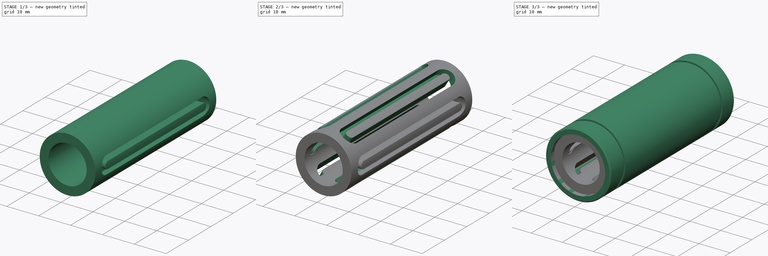
[diagram: build sequence overview — one tinted view per stage of 3, left to right]
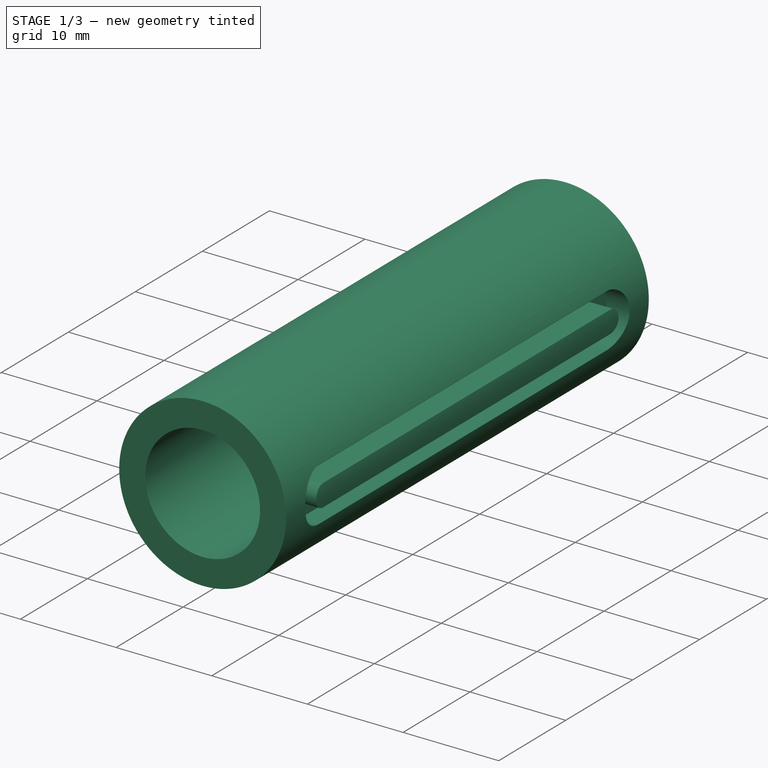
[diagram: stage 1 of 3 — iso view after this stage's code; geometry added in this stage tinted green]
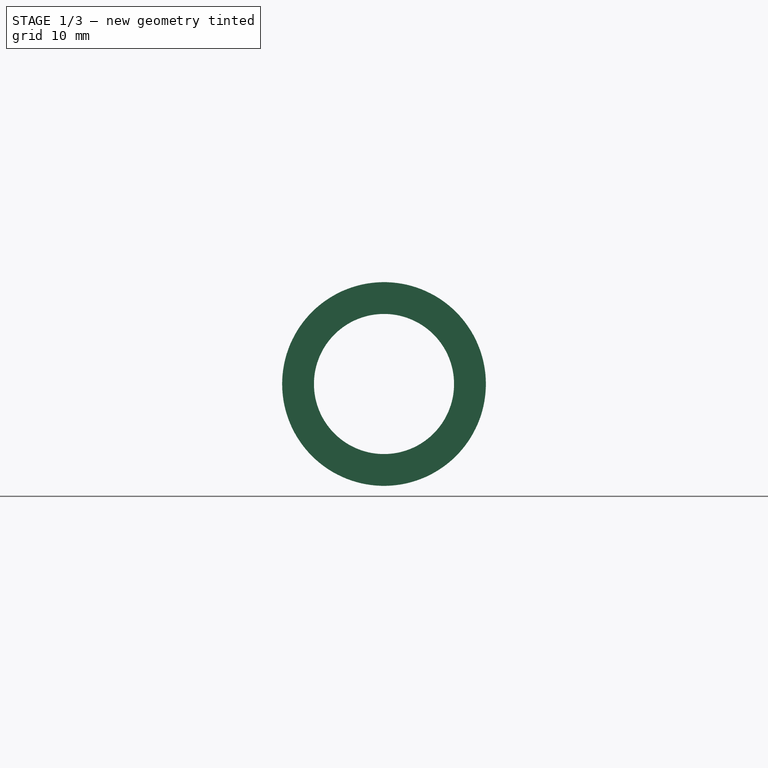
[diagram: stage 1 of 3 — front view after this stage's code; geometry added in this stage tinted green]
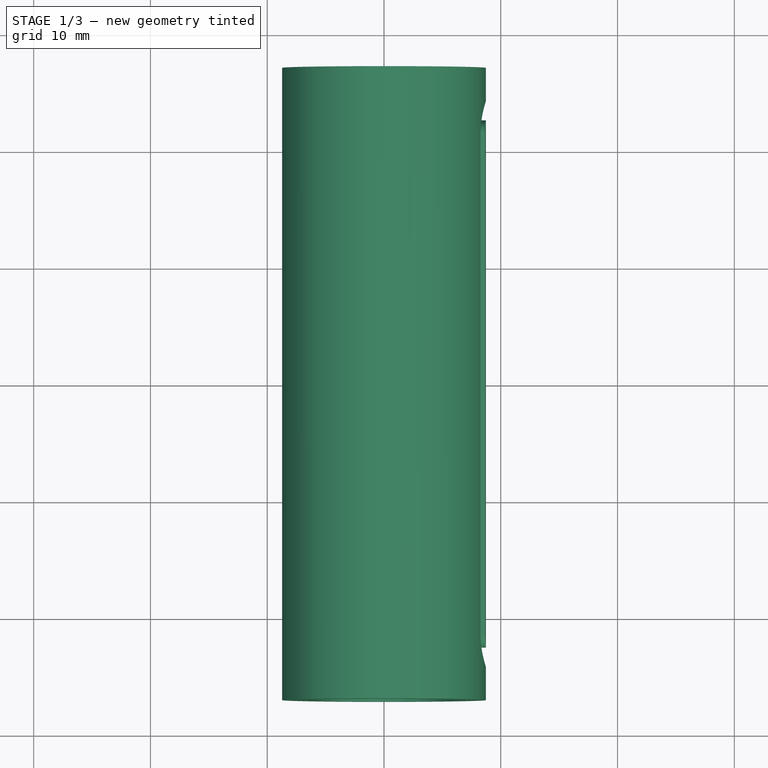
[diagram: stage 1 of 3 — top view after this stage's code; geometry added in this stage tinted green]
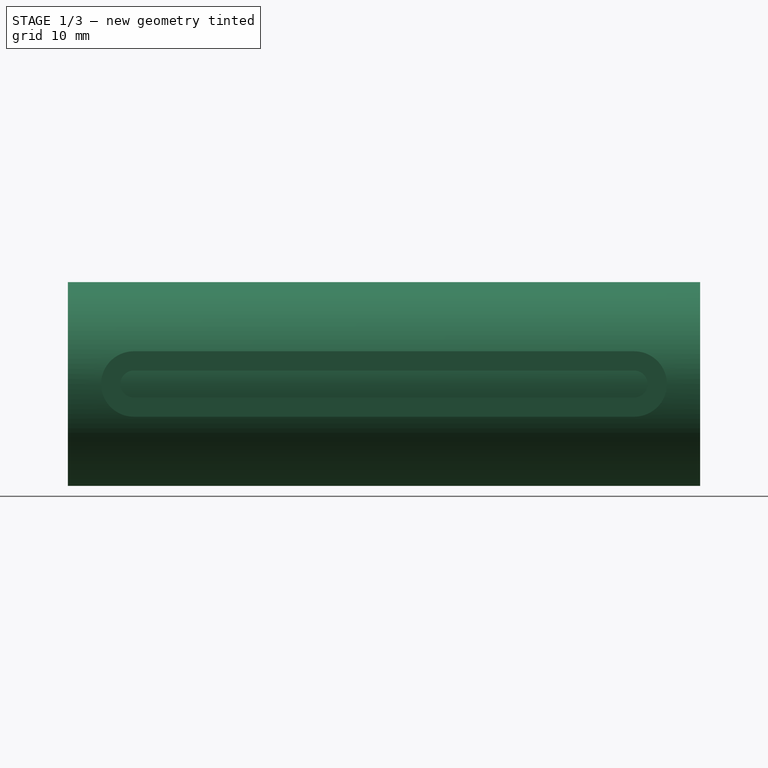
[diagram: stage 1 of 3 — right view after this stage's code; geometry added in this stage tinted green]
FCSTD DOCUMENT  (FreeCAD 0.21R33694 (Git))
Label: LMXXXUU
Comment: Parametric linear bearing model\n\nData from: 'https://www.dold-mechatronik.de/documents/Datasheets/Linear_Guidance/Datasheet_linear_bearing-without-housing.pdf\n\nThis model is licensed under CC-BY 4... (+65 chars)
License: Creative Commons Attribution
LicenseURL: http://creativecommons.org/licenses/by/4.0/
objects: Sketcher::SketchObject×4, PartDesign::Body×2, PartDesign::Pocket×2, PartDesign::Pad×1, PartDesign::Revolution×1, PartDesign::Chamfer×1, Spreadsheet::Sheet×1, PartDesign::PolarPattern×1, App::Part×1
note: 17 computed .brp shape members not serialized (recipe doc carries the construction recipe); baked Part::Feature solids carry a one-line shape summary decoded from their .brp

FEATURE [Sketcher::SketchObject] Sketch
  FullyConstrained = true
  MapMode = 5
  Placement = pos=(0,0,0) rot=(1,0,0;1.5708rad)
  Support = -> [XZ_Plane]
  expr: Constraints[2] = <<Spreadsheet>>.dr_dim
  expr: Constraints[3] = <<Spreadsheet>>.Daux_dim
  sketch-geometry (2):
    g0: Circle CenterX=0 CenterY=0 CenterZ=0 NormalX=0 NormalY=0 NormalZ=1 AngleXU=0 Radius=6
    g1: Circle CenterX=0 CenterY=0 CenterZ=0 NormalX=0 NormalY=0 NormalZ=1 AngleXU=0 Radius=8.722
  constraints (4):
    c: Coincident(g0,g-1)
    c: Coincident(g1,g0)
    c: Diameter(g0) = 12
    c: Diameter(g1) = 17.444
FEATURE [PartDesign::Pad] Pad
  Direction = (0,-1,-2e-16)
  Length = 54.15
  Length2 = 100
  Midplane = true
  Placement = pos=(0,0,0) rot=(1,0,0;1.5708rad)
  Profile = -> Sketch
  ReferenceAxis = -> Sketch [N_Axis]
  Type = 0
  expr: Length = 0.95 * Spreadsheet.L_dim
FEATURE [PartDesign::Body] Body001  label="Metal"
  Group = -> [Sketch001,Revolution,Chamfer]
  Origin = -> Origin002
  Tip = -> Chamfer
FEATURE [Spreadsheet::Sheet] Spreadsheet
  cells = A1='Multiple Linearr bearing without housing models in a single file. Only closed models.; A2='Data from:; B2='https://www.dold-mechatronik.de/documents/Datasheets/Linear_Guidance/Datasheet_linear_bearing-without-housing.pdf; A4='LME···UU; B4='Bearing according to the metric-European standard; F4='UU; G4='Dirt wipers on both sides; A5='LM···UU; B5='Metric-Japanese standard bearing; A6='LME···LUU; B6='Bearing according to the metric-European standard; A7='LM···LUU; B7='Metric-Japanese standard bearing; A10='Note 1: Daux variable means the diameter between the plastic retainer and the metal enclosure, there is no data in the pdf and did not find datasheet of retainers. Also same ball bearings size is assumed.; A11='Note 2: There are 52 models; A12='Model; B12='Ball rows; C12='dr; D12='D; E12='L; F12='B; G12='W; H12='D1; I12='aux; J12='Daux; A13==hiddenref(Part.Model.String); B13(ball_rows)==.B56; C13(dr_dim)==.C56; D13(D_dim)==.D56; E13(L_dim)==.E56; F13(B_dim)==.F56; G13(W_dim)==.G56; H13(D1_dim)==.H56; I13(aux_dim)==.I56; J13(Daux_dim)==.J56; A14='LME5UU; B14=4; C14=5; D14=12; E14=22; F14=14.5; G14=1.1; H14=11.5; I14==D14 * 0.0846666666666667; J14==D14 - 2 * I14; A15='LME8UU; B15=6; C15=8; D15=16; E15=25; F15=16.5; G15=1.1; H15=15.2; I15==D15 * 0.0846666666666667; J15==D15 - 2 * I15; A16='LME10UU; B16=6; C16=10; D16=19; E16=29; F16=22; G16=1.3; H16=18; I16==D16 * 0.0846666666666667; J16==D16 - 2 * I16; A17='LME12UU; B17=6; C17=12; D17=22; E17=32; F17=22.9; G17=1.3; H17=21; I17==D17 * 0.0846666666666667; J17==D17 - 2 * I17; A18='LME16UU; B18=6; C18=16; D18=26; E18=36; F18=24.9; G18=1.3; H18=24.9; I18==D18 * 0.0846666666666667; J18==D18 - 2 * I18; A19='LME20UU; B19=6; C19=20; D19=32; E19=45; F19=31.5; G19=1.6; H19=30.3; I19==D19 * 0.0846666666666667; J19==D19 - 2 * I19; A20='LME25UU; B20=6; C20=25; D20=40; E20=58; F20=44.1; G20=1.85; H20=37.5; I20==D20 * 0.0846666666666667; J20==D20 - 2 * I20; A21='LME30UU; B21=6; C21=30; D21=47; E21=68; F21=52.1; G21=1.85; H21=44.5; I21==D21 * 0.0846666666666667; J21==D21 - 2 * I21; A22='LME40UU; B22=6; C22=40; D22=62; E22=80; F22=60.6; G22=2.15; H22=59.5; I22==D22 * 0.0846666666666667; J22==D22 - 2 * I22; A23='LME50UU; B23=6; C23=50; D23=75; E23=100; F23=77.6; G23=2.65; H23=72.5; I23==D23 * 0.0846666666666667; J23==D23 - 2 * I23; A24='LME60UU; B24=6; C24=60; D24=90; E24=125; F24=101.7; G24=3.15; H24=86.5; I24==D24 * 0.0846666666666667; J24==D24 - 2 * I24; A25='LM5UU; B25=4; C25=5; D25=10; E25=15; F25=10.2; G25=1.1; H25=9.6; I25==D25 * 0.0846666666666667; J25==D25 - 2 * I25; A26='LM6UU; B26=4; C26=6; D26=12; E26=19; F26=13.5; G26=1.1; H26=11.5; I26==D26 * 0.0846666666666667; J26==D26 - 2 * I26; A27='LM8SUU; B27=6; C27=8; D27=15; E27=17; F27=11.5; G27=1.1; H27=14.3; I27==D27 * 0.0846666666666667; J27==D27 - 2 * I27; A28='LM8UU; B28=6; C28=8; D28=15; E28=24; F28=17.5; G28=1.1; H28=14.3; I28==D28 * 0.0846666666666667; J28==D28 - 2 * I28; A29='LM10UU; B29=6; C29=10; D29=19; E29=29; F29=22; G29=1.3; H29=18; I29==D29 * 0.0846666666666667; J29==D29 - 2 * I29; A30='LM12UU; B30=6; C30=12; D30=21; E30=30; +355 more cells
  expr: .cells.Bind.B13.J13 = tuple(.cells; <<B>> + str(hiddenref(Part.Model) + 14); <<J>> + str(hiddenref(Part.Model) + 14))
FEATURE [Sketcher::SketchObject] Sketch002
  AttachmentOffset = pos=(0,0,8.722) rot=(0,0,1;0rad)
  FullyConstrained = true
  MapMode = 5
  Placement = pos=(8.722,-1.9e-15,1.9e-15) rot=(0.57735,0.57735,0.57735;2.0944rad)
  Support = -> [YZ_Plane]
  expr: .AttachmentOffset.Base.z = <<Spreadsheet>>.Daux_dim / 2
  expr: Constraints[21] = 0.85 * <<Spreadsheet>>.L_dim - 5.6
  sketch-geometry (10):
    g0: ArcOfCircle CenterX=-21.425 CenterY=0 CenterZ=0 NormalX=0 NormalY=0 NormalZ=1 AngleXU=0 Radius=1.15 StartAngle=1.5708 EndAngle=4.71239
    g1: ArcOfCircle CenterX=21.425 CenterY=0 CenterZ=0 NormalX=0 NormalY=0 NormalZ=1 AngleXU=0 Radius=1.15 StartAngle=4.71239 EndAngle=7.85398
    g2: LineSegment StartX=-21.425 StartY=-1.15 StartZ=0 EndX=21.425 EndY=-1.15 EndZ=0
    g3: LineSegment StartX=21.425 StartY=1.15 StartZ=0 EndX=-21.425 EndY=1.15 EndZ=0
    g4: ArcOfCircle CenterX=-21.425 CenterY=0 CenterZ=0 NormalX=0 NormalY=0 NormalZ=1 AngleXU=0 Radius=2.8 StartAngle=1.5708 EndAngle=4.71239
    g5: ArcOfCircle CenterX=21.425 CenterY=0 CenterZ=0 NormalX=0 NormalY=0 NormalZ=1 AngleXU=0 Radius=2.8 StartAngle=4.71239 EndAngle=7.85398
    g6: LineSegment StartX=-21.425 StartY=-2.8 StartZ=0 EndX=21.425 EndY=-2.8 EndZ=0
    g7: LineSegment StartX=21.425 StartY=2.8 StartZ=0 EndX=-21.425 EndY=2.8 EndZ=0
    g8: GeomPoint X=-20.275 Y=0 Z=0
    g9: GeomPoint X=22.575 Y=0 Z=0
  constraints (24):
    c: Tangent(g0,g2) = -1.5708
    c: Tangent(g2,g1) = -1.5708
    c: Tangent(g1,g3) = -1.5708
    c: Tangent(g3,g0) = -1.5708
    c: Equal(g0,g1)
    c: PointOnObject(g0,g-1)
    c: Symmetric(g1,g0,g-1)
    c: Tangent(g4,g6) = -1.5708
    c: Tangent(g6,g5) = -1.5708
    c: Tangent(g5,g7) = -1.5708
    c: Tangent(g7,g4) = -1.5708
    c: Equal(g4,g5)
    c: PointOnObject(g4,g-1)
    c: Symmetric(g4,g5,g-1)
    c: Diameter(g1) = 2.3
    c: Diameter(g5) = 5.6
    c: PointOnObject(g8,g0)
    c: PointOnObject(g9,g1)
    c: PointOnObject(g8,g-1)
    c: PointOnObject(g9,g-1)
    c: Vertical(g1,g5)
    c: DistanceX(g7,g7) = 42.85
    c: DistanceY(g1) = 1.15
    c: DistanceY(g5) = 2.8
FEATURE [PartDesign::Pocket] Pocket
  BaseFeature = -> Pad
  Direction = (-1,2e-16,-3e-16)
  Length = 2.4498
  Length2 = 5
  Placement = pos=(0,0,0) rot=(1,0,0;1.5708rad)
  Profile = -> Sketch002
  ReferenceAxis = -> Sketch002 [N_Axis]
  Type = 0
  expr: Length = 0.9 * (<<Spreadsheet>>.Daux_dim / 2 - <<Spreadsheet>>.dr_dim / 2)
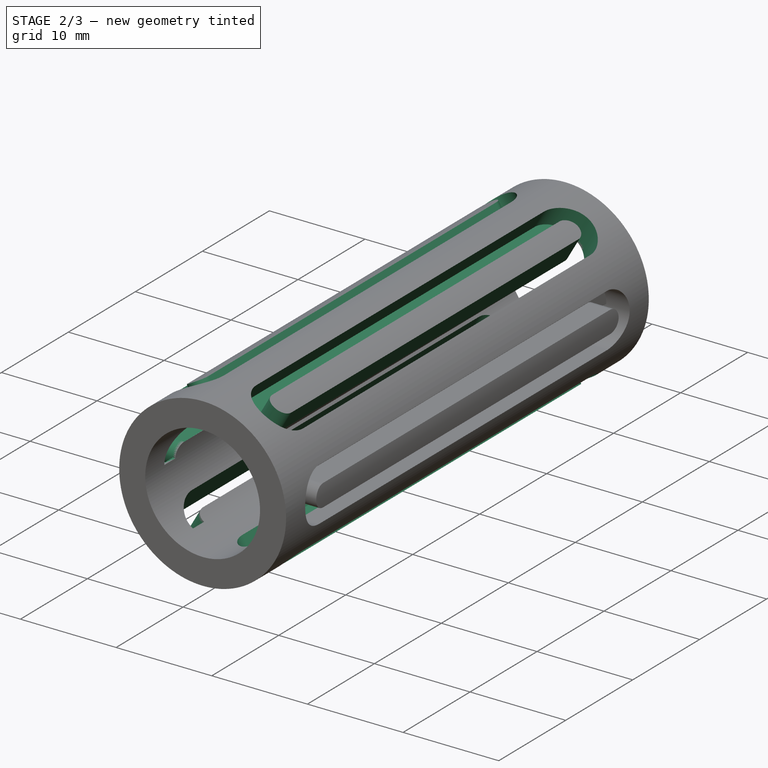
[diagram: stage 2 of 3 — iso view after this stage's code; geometry added in this stage tinted green]
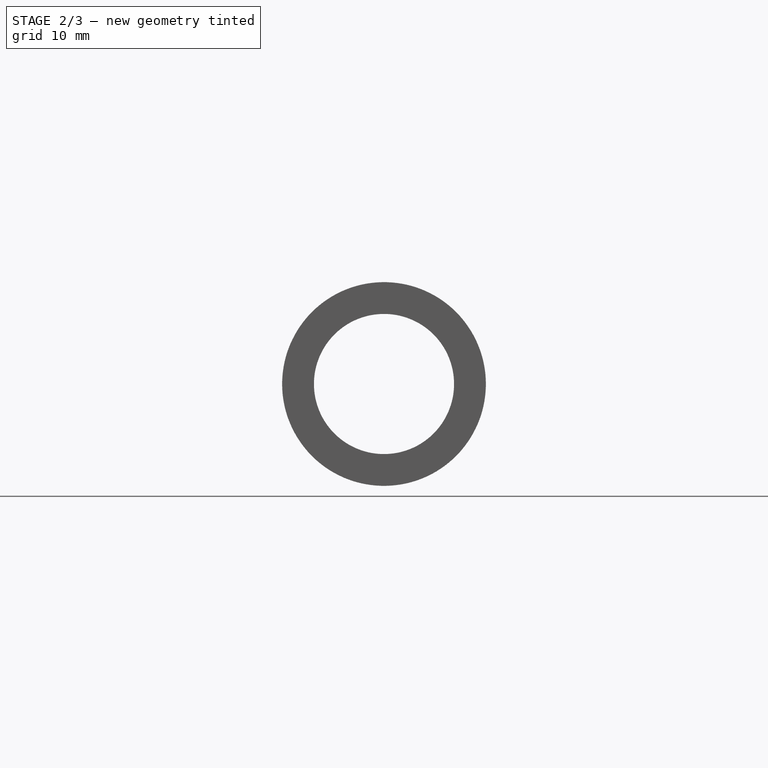
[diagram: stage 2 of 3 — front view after this stage's code; geometry added in this stage tinted green]
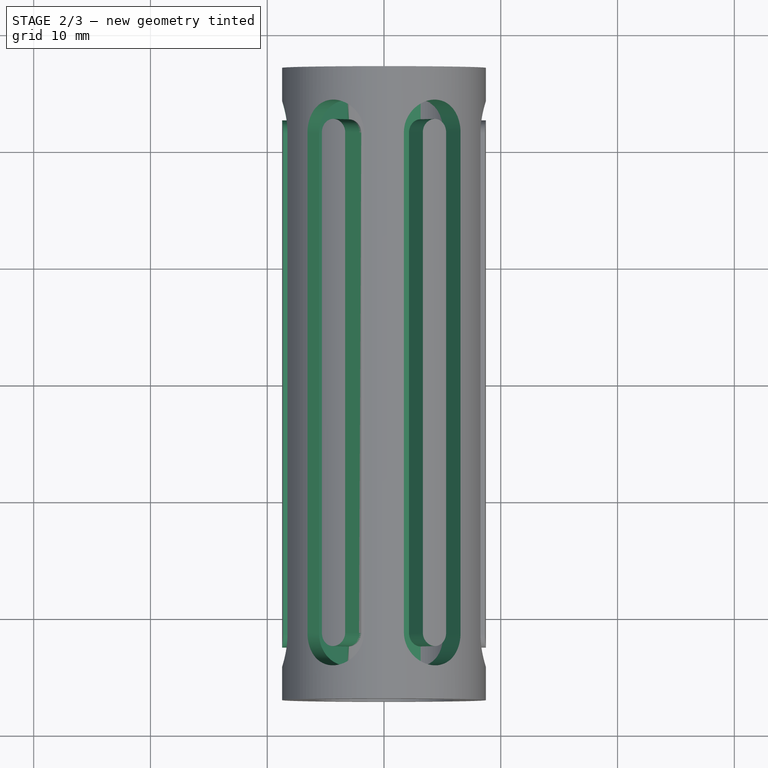
[diagram: stage 2 of 3 — top view after this stage's code; geometry added in this stage tinted green]
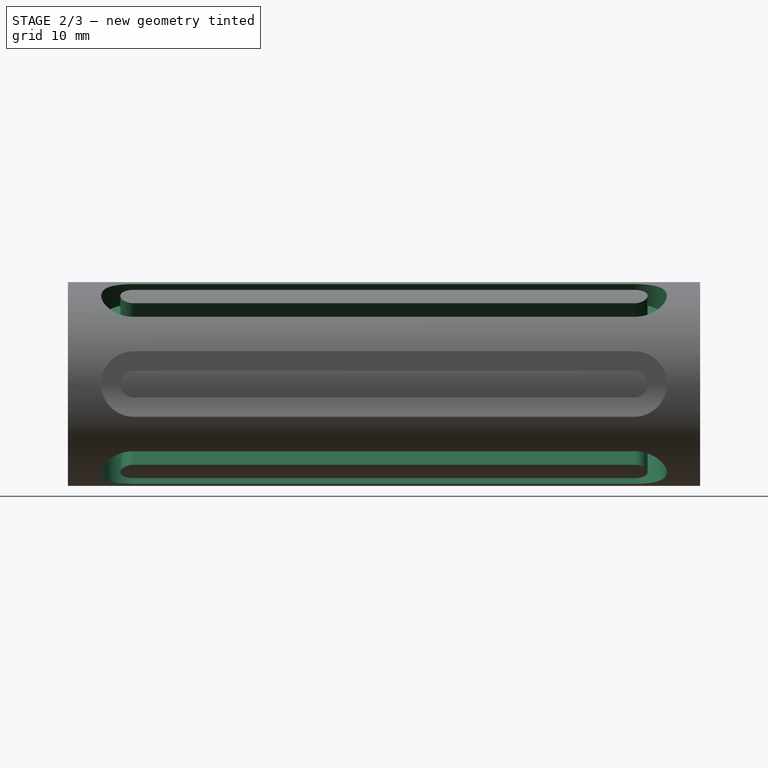
[diagram: stage 2 of 3 — right view after this stage's code; geometry added in this stage tinted green]
FEATURE [Sketcher::SketchObject] Sketch003
  FullyConstrained = true
  MapMode = 5
  Placement = pos=(0,0,0) rot=(0.57735,0.57735,0.57735;2.0944rad)
  Support = -> [YZ_Plane]
  expr: Constraints[18] = 0.85 * Spreadsheet.L_dim
  sketch-geometry (8):
    g0: LineSegment StartX=-22.575 StartY=0 StartZ=0 EndX=-24.225 EndY=3e-16 EndZ=0
    g1: LineSegment StartX=-21.425 StartY=-2.8 StartZ=0 EndX=21.425 EndY=-2.8 EndZ=0
    g2: LineSegment StartX=21.425 StartY=-1.15 StartZ=0 EndX=-21.425 EndY=-1.15 EndZ=0
    g3: ArcOfCircle CenterX=-21.425 CenterY=0 CenterZ=0 NormalX=0 NormalY=0 NormalZ=1 AngleXU=0 Radius=2.8 StartAngle=3.14159 EndAngle=4.71239
    g4: ArcOfCircle CenterX=-21.425 CenterY=0 CenterZ=0 NormalX=0 NormalY=0 NormalZ=1 AngleXU=0 Radius=1.15 StartAngle=3.14159 EndAngle=4.71239
    g5: ArcOfCircle CenterX=21.425 CenterY=0 CenterZ=0 NormalX=0 NormalY=0 NormalZ=1 AngleXU=0 Radius=2.8 StartAngle=4.71239 EndAngle=6.28319
    g6: ArcOfCircle CenterX=21.425 CenterY=0 CenterZ=0 NormalX=0 NormalY=0 NormalZ=1 AngleXU=0 Radius=1.15 StartAngle=4.71239 EndAngle=6.28319
    g7: LineSegment StartX=22.575 StartY=-3e-16 StartZ=0 EndX=24.225 EndY=-7e-16 EndZ=0
  constraints (26):
    c: PointOnObject(g0,g-1)
    c: PointOnObject(g0,g-1)
    c: PointOnObject(g5,g-1)
    c: Horizontal(g1)
    c: Horizontal(g2)
    c: PointOnObject(g3,g-1)
    c: Coincident(g3,g1)
    c: Coincident(g3,g0)
    c: Coincident(g4,g3)
    c: Coincident(g4,g2)
    c: Coincident(g4,g0)
    c: Vertical(g2,g1)
    c: Vertical(g1,g3)
    c: PointOnObject(g5,g-1)
    c: Coincident(g5,g1)
    c: PointOnObject(g6,g-1)
    c: Vertical(g1,g2)
    c: Vertical(g2,g5)
    c: DistanceX(g0,g5) = 48.45
    c: Symmetric(g6,g0,g-1)
    c: DistanceX(g5,g6) = 1.15
    c: Coincident(g7,g6)
    c: Coincident(g7,g5)
    c: DistanceX(g5,g5) = 2.8
    c: Tangent(g6,g2) = 1.5708
    c: DistanceY(g1) = -2.8
FEATURE [PartDesign::Pocket] Pocket001
  BaseFeature = -> Pocket
  Direction = (-1,2e-16,-3e-16)
  Length = 8.722
  Length2 = 5
  Placement = pos=(0,0,0) rot=(1,0,0;1.5708rad)
  Profile = -> Sketch003
  ReferenceAxis = -> Sketch003 [N_Axis]
  Reversed = true
  Type = 0
  expr: Length = <<Spreadsheet>>.Daux_dim / 2
FEATURE [PartDesign::PolarPattern] PolarPattern
  Angle = 360
  Axis = -> Y_Axis
  BaseFeature = -> Pocket001
  Occurrences = 6
  Originals = -> [Pocket001,Pocket]
  Placement = pos=(0,0,0) rot=(1,0,0;1.5708rad)
  expr: Occurrences = <<Spreadsheet>>.ball_rows
FEATURE [PartDesign::Body] Body  label="Resin retainer"
  Group = -> [Sketch,Pad,Sketch002,Pocket,Sketch003,Pocket001,PolarPattern]
  Origin = -> Origin
  Tip = -> PolarPattern
FEATURE [App::Part] Part  label="LMXXXUU"
  Group = -> [Body,Body001]
  Model = 42
  Origin = -> Origin001
  expr: .Model.Enum = Spreadsheet.cells[<<A14:|>>]
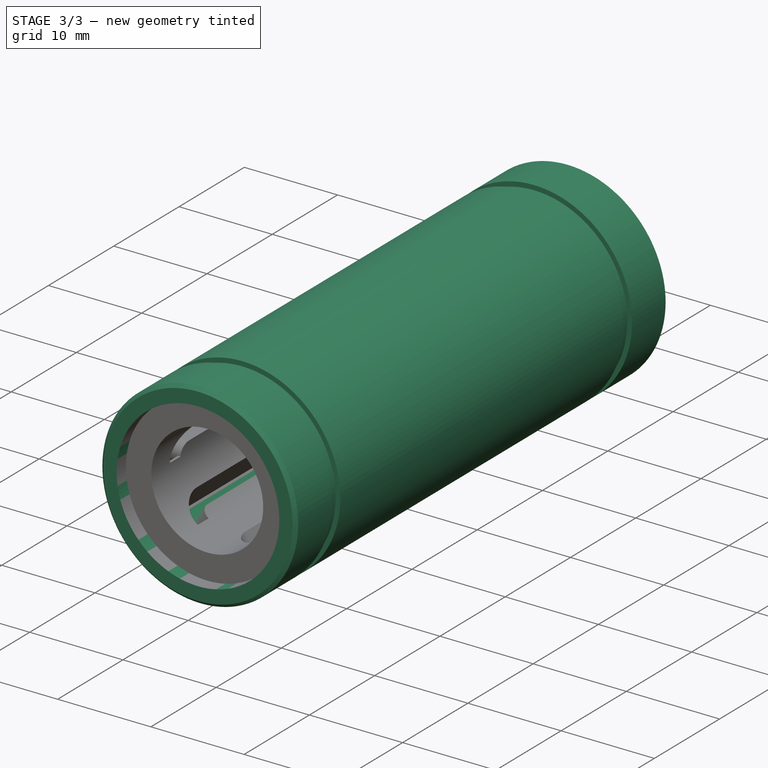
[diagram: stage 3 of 3 — iso view after this stage's code; geometry added in this stage tinted green]
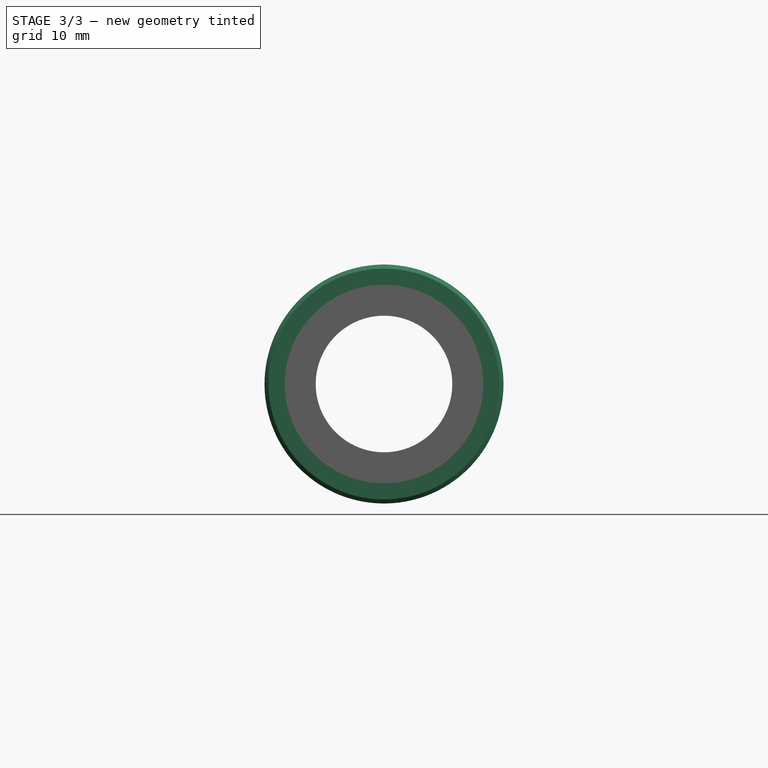
[diagram: stage 3 of 3 — front view after this stage's code; geometry added in this stage tinted green]
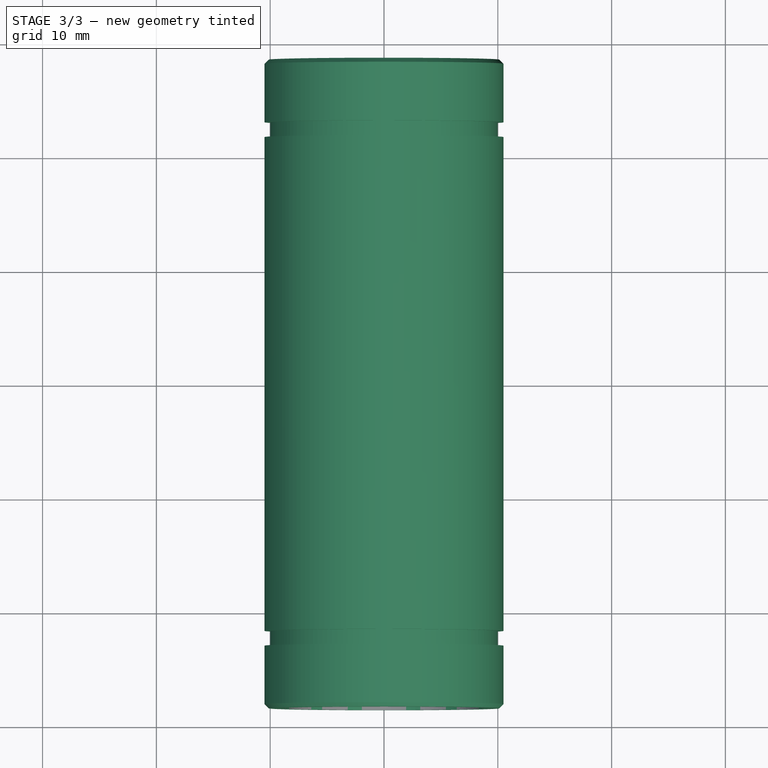
[diagram: stage 3 of 3 — top view after this stage's code; geometry added in this stage tinted green]
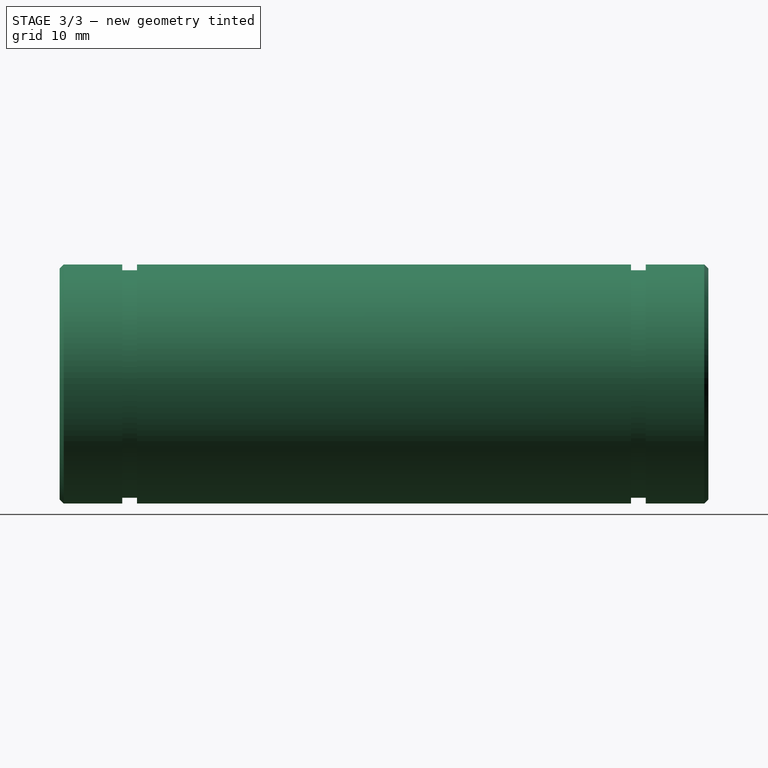
[diagram: stage 3 of 3 — right view after this stage's code; geometry added in this stage tinted green]
FEATURE [Sketcher::SketchObject] Sketch001
  FullyConstrained = true
  MapMode = 5
  Support = -> [XY_Plane002]
  expr: Constraints[27] = <<Spreadsheet>>.Daux_dim / 2
  expr: Constraints[29] = <<Spreadsheet>>.L_dim
  expr: Constraints[32] = <<Spreadsheet>>.B_dim
  expr: Constraints[33] = <<Spreadsheet>>.W_dim
  expr: Constraints[34] = <<Spreadsheet>>.D1_dim / 2
  expr: Constraints[35] = <<Spreadsheet>>.D_dim / 2
  sketch-geometry (13):
    g0: LineSegment StartX=8.722 StartY=28.5 StartZ=0 EndX=8.722 EndY=-28.5 EndZ=0
    g1: LineSegment StartX=8.722 StartY=-28.5 StartZ=0 EndX=10.5 EndY=-28.5 EndZ=0
    g2: LineSegment StartX=10.5 StartY=-28.5 StartZ=0 EndX=10.5 EndY=-23 EndZ=0
    g3: LineSegment StartX=10.5 StartY=-23 StartZ=0 EndX=10 EndY=-23 EndZ=0
    g4: LineSegment StartX=10 StartY=-23 StartZ=0 EndX=10 EndY=-21.7 EndZ=0
    g5: LineSegment StartX=10 StartY=-21.7 StartZ=0 EndX=10.5 EndY=-21.7 EndZ=0
    g6: LineSegment StartX=10.5 StartY=-21.7 StartZ=0 EndX=10.5 EndY=21.7 EndZ=0
    g7: LineSegment StartX=10.5 StartY=21.7 StartZ=0 EndX=10 EndY=21.7 EndZ=0
    g8: LineSegment StartX=10 StartY=21.7 StartZ=0 EndX=10 EndY=23 EndZ=0
    g9: LineSegment StartX=10 StartY=23 StartZ=0 EndX=10.5 EndY=23 EndZ=0
    g10: LineSegment StartX=10.5 StartY=23 StartZ=0 EndX=10.5 EndY=28.5 EndZ=0
    g11: LineSegment StartX=10.5 StartY=28.5 StartZ=0 EndX=8.722 EndY=28.5 EndZ=0
    g12: GeomPoint X=8.722 Y=0 Z=0
  constraints (37):
    c: Vertical(g0)
    c: Coincident(g0,g1)
    c: Horizontal(g1)
    c: Coincident(g1,g2)
    c: Vertical(g2)
    c: Coincident(g2,g3)
    c: Horizontal(g3)
    c: Coincident(g3,g4)
    c: Vertical(g4)
    c: Coincident(g4,g5)
    c: Horizontal(g5)
    c: Coincident(g5,g6)
    c: Vertical(g6)
    c: Coincident(g6,g7)
    c: Horizontal(g7)
    c: Coincident(g7,g8)
    c: Vertical(g8)
    c: Coincident(g8,g9)
    c: Coincident(g9,g10)
    c: Vertical(g10)
    c: Coincident(g10,g11)
    c: Coincident(g11,g0)
    c: Horizontal(g11)
    c: Equal(g8,g4)
    c: Horizontal(g9)
    c: Vertical(g5,g2)
    c: Vertical(g6,g9)
    c: DistanceX(g-1,g0) = 8.722
    c: Equal(g2,g10)
    c: DistanceY(g0,g0) = 57
    c: PointOnObject(g12,g-1)
    c: Symmetric(g0,g0,g12)
    c: DistanceY(g2,g9) = 46
    c: DistanceY(g8,g8) = 1.3
    c: DistanceX(g8) = 10
    c: DistanceX(g10) = 10.5
    c: Vertical(g4,g7)
FEATURE [PartDesign::Revolution] Revolution
  Angle = 360
  Axis = (0,1,0)
  Base = (0,0,0)
  Profile = -> Sketch001
  ReferenceAxis = -> Sketch001 [V_Axis]
  Reversed = true
FEATURE [PartDesign::Chamfer] Chamfer
  Angle = 45
  Base = -> Revolution [Edge4,Edge17]
  BaseFeature = -> Revolution
  ChamferType = 0
  FlipDirection = false
  Size = 0.3556
  Size2 = 1
  SupportTransform = false
  UseAllEdges = false
  expr: Size = 0.2 * <<Spreadsheet>>.aux_dim
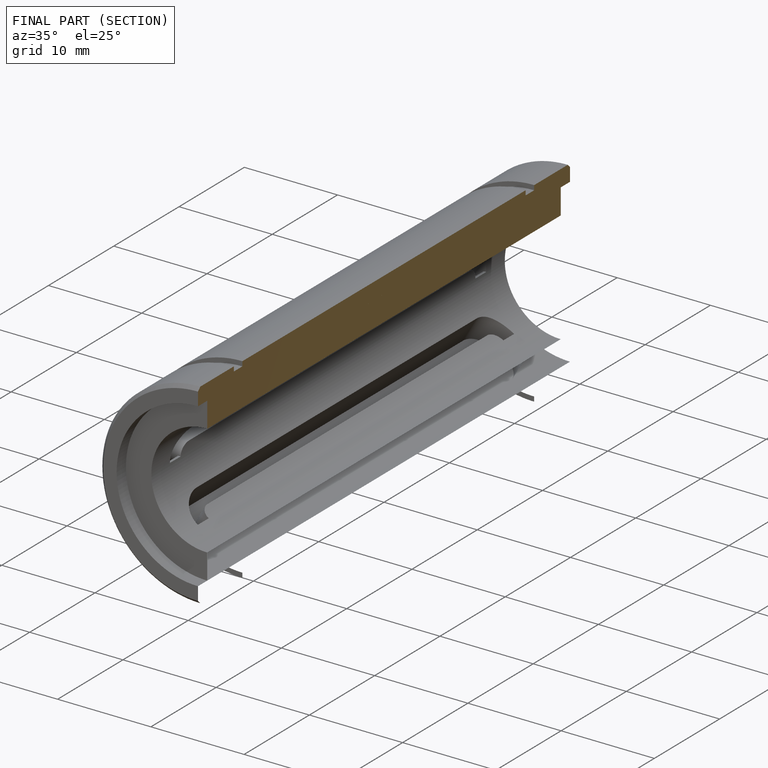
[diagram: finished part — half-section view (interior)]
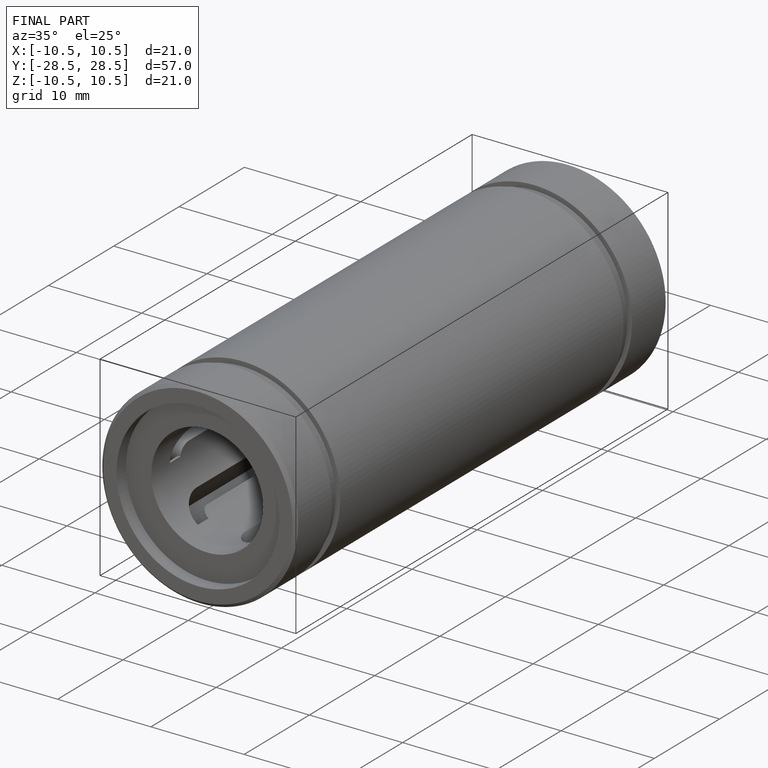
[diagram: finished part — iso view with bounding-box wireframe]
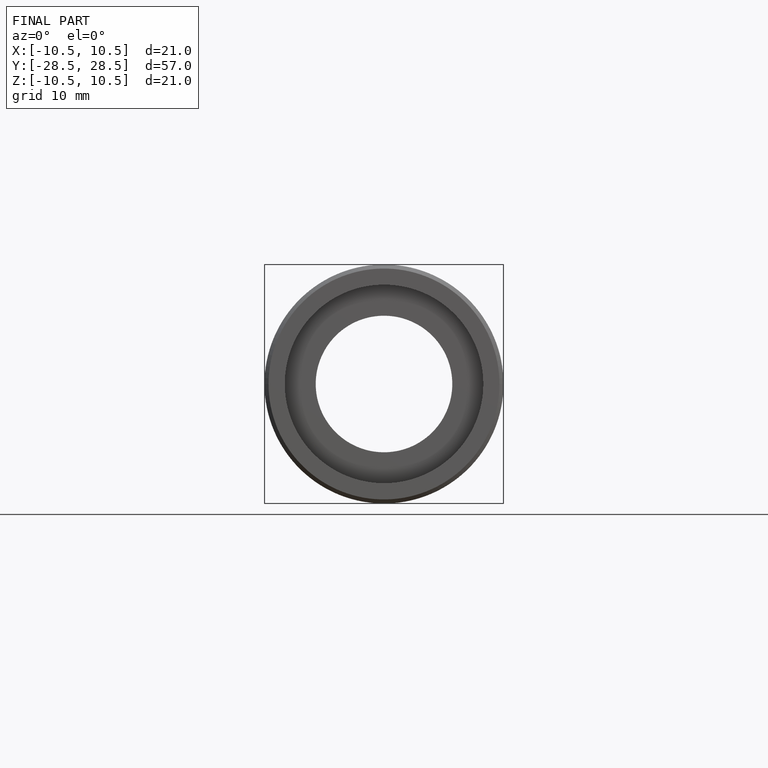
[diagram: finished part — front view with bounding-box wireframe]
